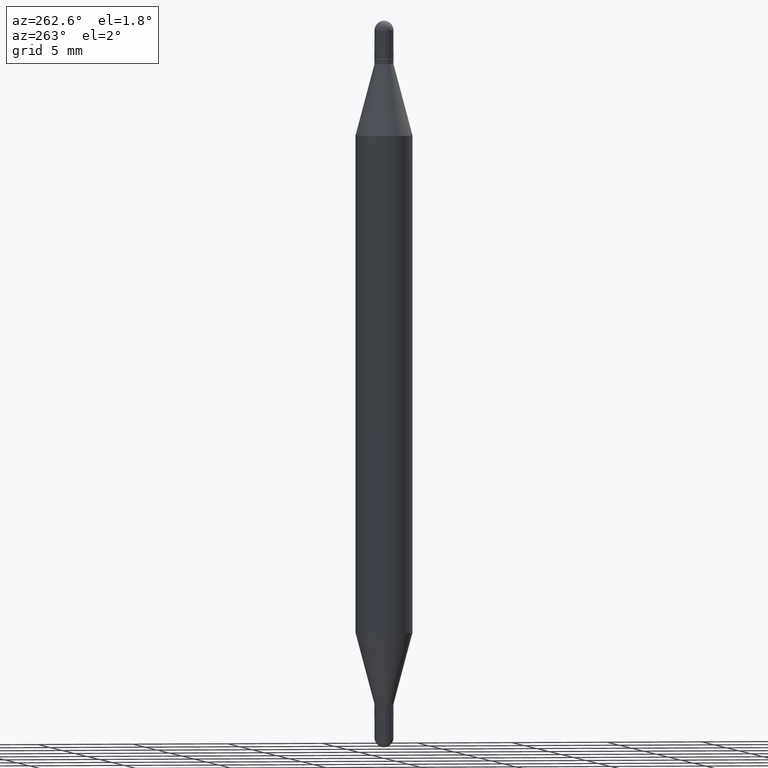
[diagram: clean part render]
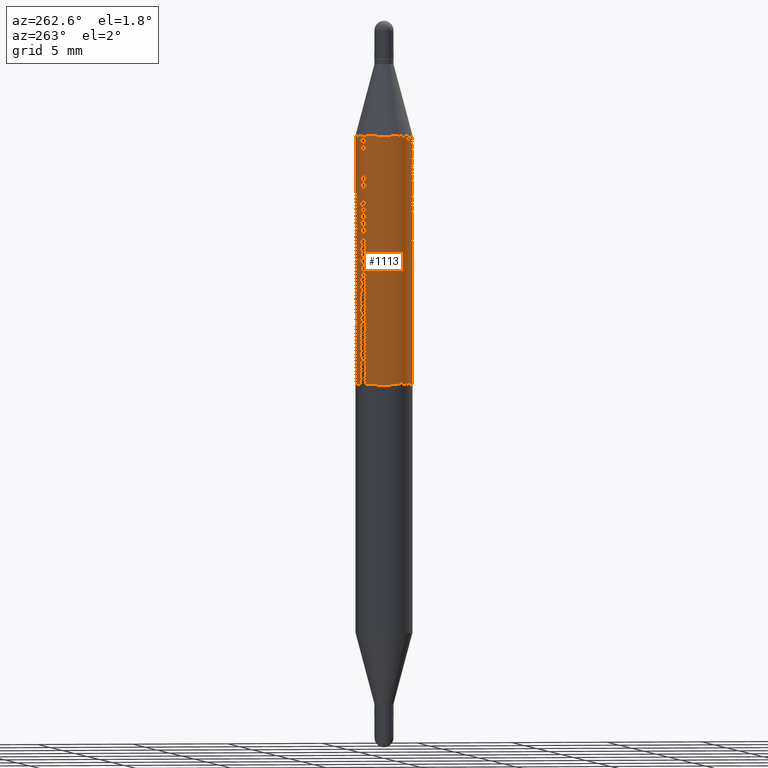
[diagram: same view with one face highlighted and labeled with its STEP entity id]
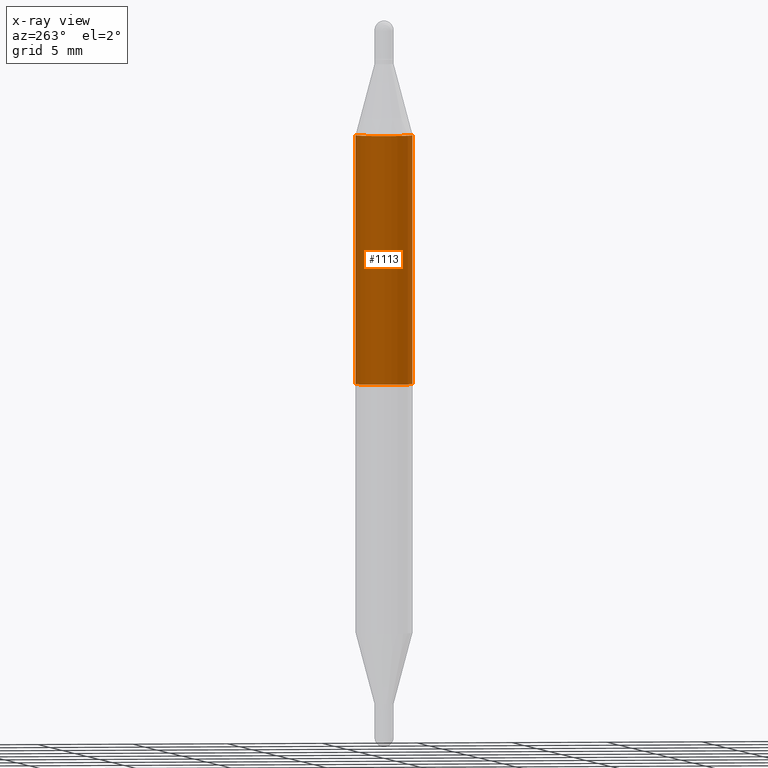
[diagram: x-ray of the same camera — body ghosted, the highlighted face saturated]
A machine part, auxiliary view. The second image highlights one B-rep face of the part: STEP entity #1113.
The next image is the same camera in x-ray: the body ghosted, the highlighted face saturated — about 0% of this face is hidden behind the body in this view.
In plain terms, the highlighted cylindrical surface (edge-blend (fillet) strip) has radius 1.4999 mm, axis along (-0, -0, -1).
Its self-contained STEP definition (entity closure, byte-faithful):
#30 = VERTEX_POINT ( 'NONE', #1097 ) ;
#69 = AXIS2_PLACEMENT_3D ( 'NONE', #514, #848, #96 ) ;
#76 = DIRECTION ( 'NONE',  ( 0.000000000000000000, 1.000000000000000000, -4.626330217890367758E-15 ) ) ;
#82 = CARTESIAN_POINT ( 'NONE',  ( -4.123439461173741313E-16, -0.05905000000000523025, -1.496099999999999541 ) ) ;
#90 = AXIS2_PLACEMENT_3D ( 'NONE', #176, #440, #280 ) ;
#96 = DIRECTION ( 'NONE',  ( -6.982962677686265922E-15, -1.000000000000000000, 3.469747663417777002E-15 ) ) ;
#112 = VERTEX_POINT ( 'NONE', #117 ) ;
#117 = CARTESIAN_POINT ( 'NONE',  ( -4.123439461173557410E-16, -0.05905000000000261429, -0.7480499999999996597 ) ) ;
#175 = CARTESIAN_POINT ( 'NONE',  ( 4.051124067684336187E-16, 0.05904999999999741012, -0.7480500000000002148 ) ) ;
#176 = CARTESIAN_POINT ( 'NONE',  ( 0.000000000000000000, -5.214728217544379106E-15, -1.496099999999999985 ) ) ;
#203 = EDGE_LOOP ( 'NONE', ( #990, #919, #979, #1079 ) ) ;
#232 = VECTOR ( 'NONE', #656, 39.37007874015748143 ) ;
#249 = CARTESIAN_POINT ( 'NONE',  ( 4.051124067684090161E-16, 0.05904999999999480109, -1.496100000000000207 ) ) ;
#260 = VECTOR ( 'NONE', #1105, 39.37007874015748143 ) ;
#280 = DIRECTION ( 'NONE',  ( -6.982962677686265922E-15, -1.000000000000000000, 4.626330217890367758E-15 ) ) ;
#325 = LINE ( 'NONE', #82, #232 ) ;
#348 = FACE_OUTER_BOUND ( 'NONE', #203, .T. ) ;
#369 = CARTESIAN_POINT ( 'NONE',  ( 1.834541593732396125E-29, -2.604343527587136184E-15, -0.7480499999999999927 ) ) ;
#378 = VERTEX_POINT ( 'NONE', #175 ) ;
#388 = EDGE_CURVE ( 'NONE', #619, #30, #856, .T. ) ;
#406 = LINE ( 'NONE', #249, #260 ) ;
#425 = CIRCLE ( 'NONE', #1022, 0.05905000000000001914 ) ;
#440 = DIRECTION ( 'NONE',  ( -2.452431780940306437E-29, -3.489585843135142611E-15, -1.000000000000000000 ) ) ;
#480 = EDGE_CURVE ( 'NONE', #619, #378, #406, .T. ) ;
#514 = CARTESIAN_POINT ( 'NONE',  ( 3.090661948624037332E-29, -8.169992916454894911E-16, -0.2358561992778358263 ) ) ;
#560 = CARTESIAN_POINT ( 'NONE',  ( 4.051124067684398803E-16, 0.05904999999999917953, -0.2358561992778360206 ) ) ;
#601 = CYLINDRICAL_SURFACE ( 'NONE', #90, 0.05905000000000001914 ) ;
#619 = VERTEX_POINT ( 'NONE', #560 ) ;
#656 = DIRECTION ( 'NONE',  ( -2.452431780940306717E-29, -3.489585843135142611E-15, -1.000000000000000000 ) ) ;
#696 = EDGE_CURVE ( 'NONE', #112, #378, #425, .T. ) ;
#706 = DIRECTION ( 'NONE',  ( -0.000000000000000000, -3.485547902910486918E-15, -1.000000000000000000 ) ) ;
#848 = DIRECTION ( 'NONE',  ( 2.452431780940306437E-29, 3.489585843135142611E-15, 1.000000000000000000 ) ) ;
#856 = CIRCLE ( 'NONE', #69, 0.05905000000000000526 ) ;
#919 = ORIENTED_EDGE ( 'NONE', *, *, #480, .T. ) ;
#979 = ORIENTED_EDGE ( 'NONE', *, *, #696, .F. ) ;
#981 = EDGE_CURVE ( 'NONE', #30, #112, #325, .T. ) ;
#990 = ORIENTED_EDGE ( 'NONE', *, *, #388, .F. ) ;
#1022 = AXIS2_PLACEMENT_3D ( 'NONE', #369, #706, #76 ) ;
#1079 = ORIENTED_EDGE ( 'NONE', *, *, #981, .F. ) ;
#1097 = CARTESIAN_POINT ( 'NONE',  ( -4.123439461173430699E-16, -0.05905000000000081711, -0.2358561992778356042 ) ) ;
#1105 = DIRECTION ( 'NONE',  ( -2.452431780940306717E-29, -3.489585843135142611E-15, -1.000000000000000000 ) ) ;
#1113 = ADVANCED_FACE ( 'NONE', ( #348 ), #601, .T. ) ;